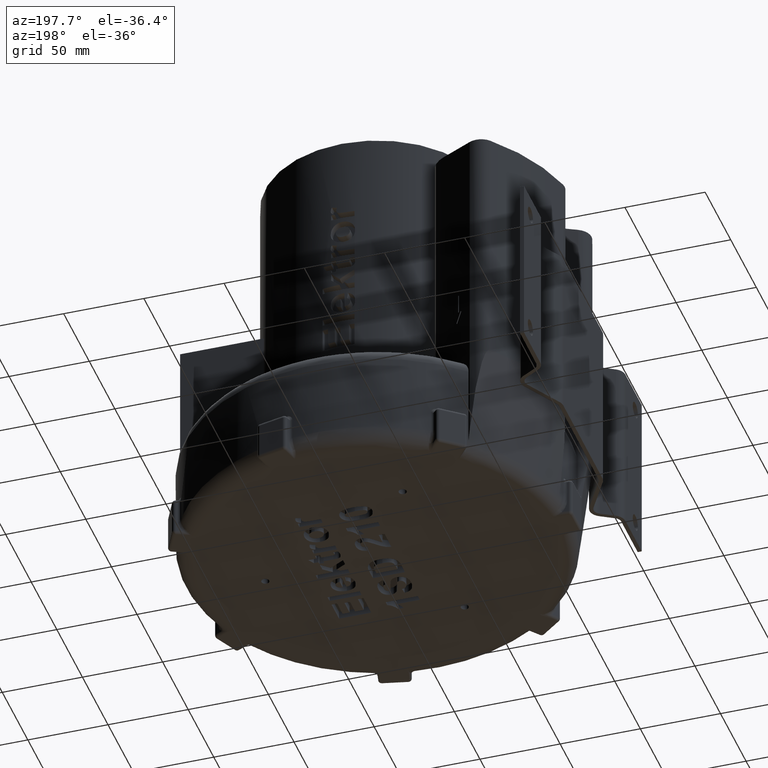
[diagram: clean part render]
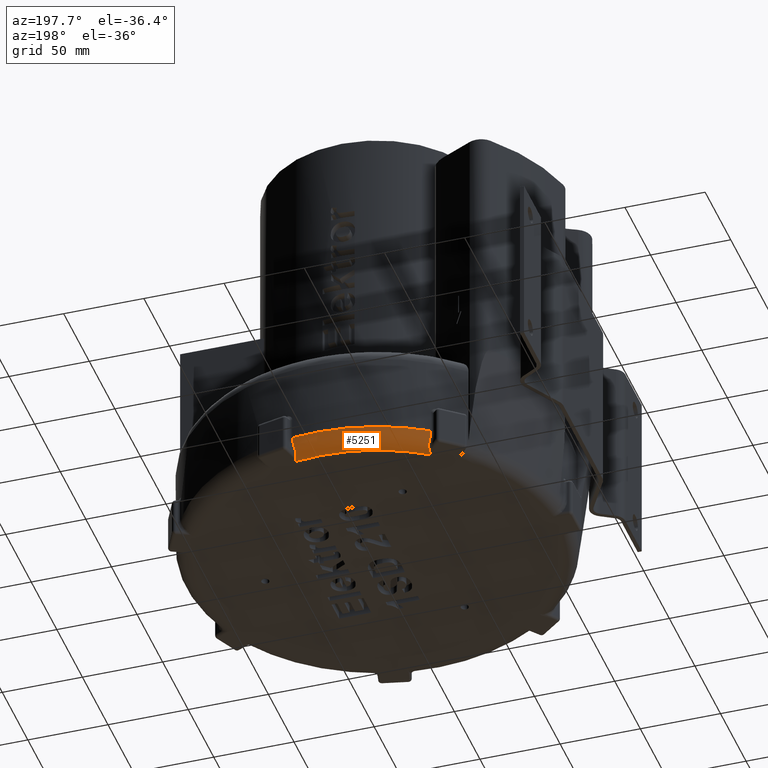
[diagram: same view with one face highlighted and labeled with its STEP entity id]
A machine part, auxiliary view. The second image highlights one B-rep face of the part: STEP entity #5251.
In plain terms, the highlighted toroidal blend (fillet) surface has major radius 110 mm and minor (blend) radius 10 mm.
Its self-contained STEP definition (entity closure, byte-faithful):
#1916=CARTESIAN_POINT('',(15.065682783022067,119.0505153381595,-62.0));
#1917=VERTEX_POINT('',#1916);
#1924=CARTESIAN_POINT('',(-65.227791388608665,100.72405487550702,-62.0));
#1925=VERTEX_POINT('',#1924);
#1926=CARTESIAN_POINT('',(0.0,0.0,-62.0));
#1927=DIRECTION('',(0.0,0.0,-1.0));
#1928=DIRECTION('',(0.0,-1.0,0.0));
#1929=AXIS2_PLACEMENT_3D('',#1926,#1927,#1928);
#1930=CIRCLE('',#1929,120.0);
#1931=EDGE_CURVE('',#1925,#1917,#1930,.T.);
#2622=CARTESIAN_POINT('',(-62.14760588557894,90.7616388277049,-72.0));
#2623=VERTEX_POINT('',#2622);
#2630=CARTESIAN_POINT('',(16.613061605774373,108.73824618818691,-72.0));
#2631=VERTEX_POINT('',#2630);
#2632=CARTESIAN_POINT('',(0.0,0.0,-72.0));
#2633=DIRECTION('',(0.0,0.0,1.0));
#2634=DIRECTION('',(0.0,-1.0,0.0));
#2635=AXIS2_PLACEMENT_3D('',#2632,#2633,#2634);
#2636=CIRCLE('',#2635,110.0);
#2637=EDGE_CURVE('',#2631,#2623,#2636,.T.);
#4083=CARTESIAN_POINT('',(14.45001635201942,116.56129617708598,-68.666666666663886));
#4084=VERTEX_POINT('',#4083);
#4092=CARTESIAN_POINT('',(14.450016352019421,116.56129617708598,-68.666666666663886));
#4093=CARTESIAN_POINT('',(14.672936478682564,117.4608141745787,-67.637952525833569));
#4094=CARTESIAN_POINT('',(14.973380335924054,118.67646426837028,-65.480594386203947));
#4095=CARTESIAN_POINT('',(15.065682783022044,119.0505153381595,-63.037486305369626));
#4096=CARTESIAN_POINT('',(15.065682783022044,119.0505153381595,-62.000000000000014));
#4097=B_SPLINE_CURVE_WITH_KNOTS('',3,(#4092,#4093,#4094,#4095,#4096),.UNSPECIFIED.,.F.,.U.,(4,1,4),(0.0,0.497993426577423,0.871488496510489),.UNSPECIFIED.);
#4098=EDGE_CURVE('',#4084,#1917,#4097,.T.);
#4177=CARTESIAN_POINT('',(16.613061605774373,108.73824618818695,-72.000000000000014));
#4178=CARTESIAN_POINT('',(16.611173376792859,108.74278733402748,-72.000000000000014));
#4179=CARTESIAN_POINT('',(16.609284833629406,108.74732924095589,-71.999997126097128));
#4180=CARTESIAN_POINT('',(16.370386020030192,109.32187462194088,-71.999365585785768));
#4181=CARTESIAN_POINT('',(15.892519214511493,110.4720142666268,-71.912680417735601));
#4182=CARTESIAN_POINT('',(15.232232330255348,112.15592481702882,-71.526728522448991));
#4183=CARTESIAN_POINT('',(14.687031415719341,113.78225518687688,-70.866803437425574));
#4184=CARTESIAN_POINT('',(14.347737423419918,115.29339364570492,-69.926423532346519));
#4185=CARTESIAN_POINT('',(14.354692433611426,116.17664907732588,-69.106559933786457));
#4186=CARTESIAN_POINT('',(14.450016352019402,116.56129617708594,-68.666666666663914));
#4187=B_SPLINE_CURVE_WITH_KNOTS('',3,(#4177,#4178,#4179,#4180,#4181,#4182,#4183,#4184,#4185,#4186),.UNSPECIFIED.,.F.,.U.,(4,2,1,1,1,1,4),(-0.001696084618979,0.0,0.212949299254145,0.42589859850829,0.638847897762435,0.85179719701658,1.064746496270725),.UNSPECIFIED.);
#4188=EDGE_CURVE('',#2631,#4084,#4187,.T.);
#5063=CARTESIAN_POINT('',(-63.593063433430814,98.748473518367064,-68.666666666663843));
#5064=VERTEX_POINT('',#5063);
#5065=CARTESIAN_POINT('',(-65.227791388608679,100.72405487550699,-62.000000000000014));
#5066=CARTESIAN_POINT('',(-65.227791388608679,100.72405487550699,-63.383315399557773));
#5067=CARTESIAN_POINT('',(-64.898138018994771,100.32517397494269,-65.823550324468997));
#5068=CARTESIAN_POINT('',(-64.036411269211243,99.283760875799459,-67.895130879366263));
#5069=CARTESIAN_POINT('',(-63.593063433430821,98.748473518367049,-68.666666666663843));
#5070=B_SPLINE_CURVE_WITH_KNOTS('',3,(#5065,#5066,#5067,#5068,#5069),.UNSPECIFIED.,.F.,.U.,(4,1,4),(0.0,0.497993543840799,0.871488701721398),.UNSPECIFIED.);
#5071=EDGE_CURVE('',#1925,#5064,#5070,.T.);
#5154=CARTESIAN_POINT('',(-63.593063433430828,98.748473518367049,-68.666666666663843));
#5155=CARTESIAN_POINT('',(-63.340287559654854,98.443278097129195,-69.106559719124505));
#5156=CARTESIAN_POINT('',(-62.950886592105626,97.650084870048929,-69.926388882082364));
#5157=CARTESIAN_POINT('',(-62.600487503962476,96.142411169708424,-70.867002162431859));
#5158=CARTESIAN_POINT('',(-62.421602220590017,94.721005476721587,-71.417992534175085));
#5159=CARTESIAN_POINT('',(-62.318482022160353,93.538702203192585,-71.71973820367684));
#5160=CARTESIAN_POINT('',(-62.254354786499384,92.626381332661722,-71.881797802676004));
#5161=CARTESIAN_POINT('',(-62.199209839595717,91.703085332351705,-71.978033309540479));
#5162=CARTESIAN_POINT('',(-62.165303904017335,91.084622995689614,-71.999667091966231));
#5163=CARTESIAN_POINT('',(-62.148144270309771,90.771463733418912,-71.999997261554128));
#5164=CARTESIAN_POINT('',(-62.147875068666991,90.766551162075061,-72.000000000000014));
#5165=CARTESIAN_POINT('',(-62.147605885578926,90.761638827704942,-72.000000000000014));
#5166=B_SPLINE_CURVE_WITH_KNOTS('',3,(#5154,#5155,#5156,#5157,#5158,#5159,#5160,#5161,#5162,#5163,#5164,#5165),.UNSPECIFIED.,.F.,.U.,(4,1,1,1,1,1,1,2,4),(8.038155E-016,0.212949195337811,0.425898390675622,0.638847586013432,0.745322183682337,0.851796781351242,0.958271379020148,1.064745976689053,1.066442624799207),.UNSPECIFIED.);
#5167=EDGE_CURVE('',#5064,#2623,#5166,.T.);
#5238=CARTESIAN_POINT('',(0.0,0.0,-62.0));
#5239=DIRECTION('',(0.0,0.0,1.0));
#5240=DIRECTION('',(0.0,-1.0,0.0));
#5241=AXIS2_PLACEMENT_3D('',#5238,#5239,#5240);
#5242=TOROIDAL_SURFACE('',#5241,110.0,10.0);
#5243=ORIENTED_EDGE('',*,*,#4188,.F.);
#5244=ORIENTED_EDGE('',*,*,#2637,.T.);
#5245=ORIENTED_EDGE('',*,*,#5167,.F.);
#5246=ORIENTED_EDGE('',*,*,#5071,.F.);
#5247=ORIENTED_EDGE('',*,*,#1931,.T.);
#5248=ORIENTED_EDGE('',*,*,#4098,.F.);
#5249=EDGE_LOOP('',(#5243,#5244,#5245,#5246,#5247,#5248));
#5250=FACE_OUTER_BOUND('',#5249,.T.);
#5251=ADVANCED_FACE('',(#5250),#5242,.T.);